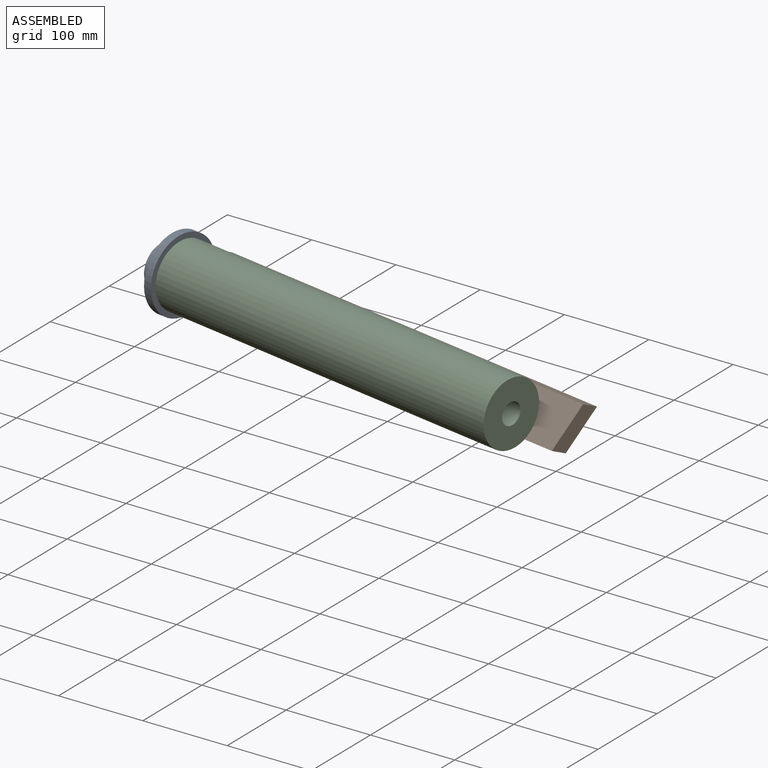
[diagram: assembled view]
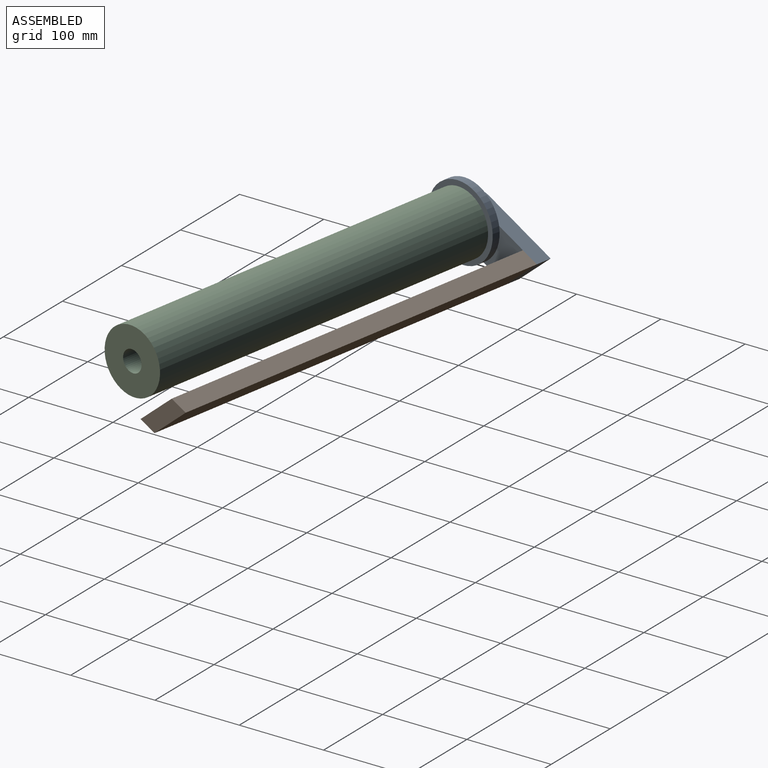
[diagram: assembled view, second angle]
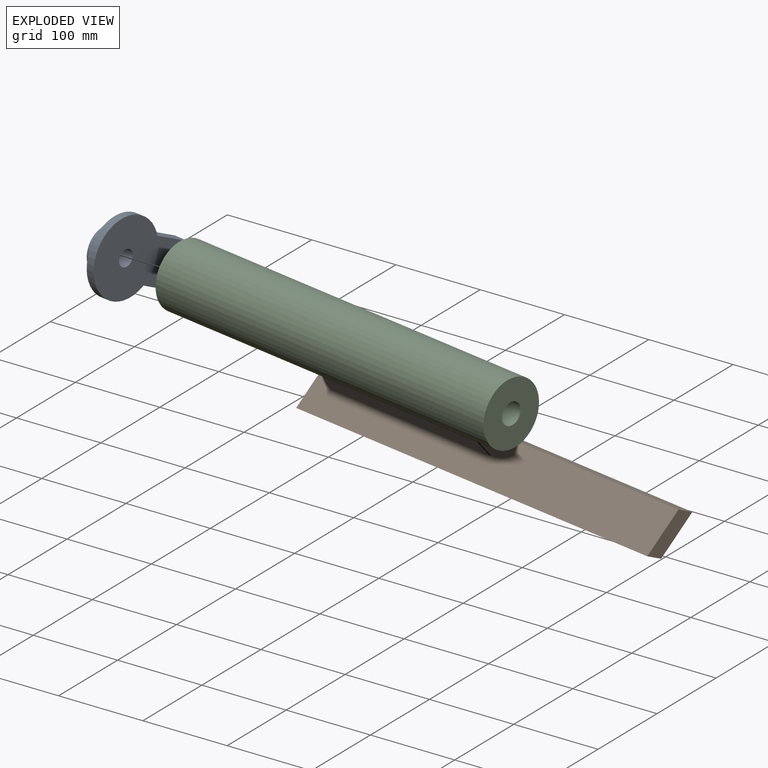
[diagram: exploded view]
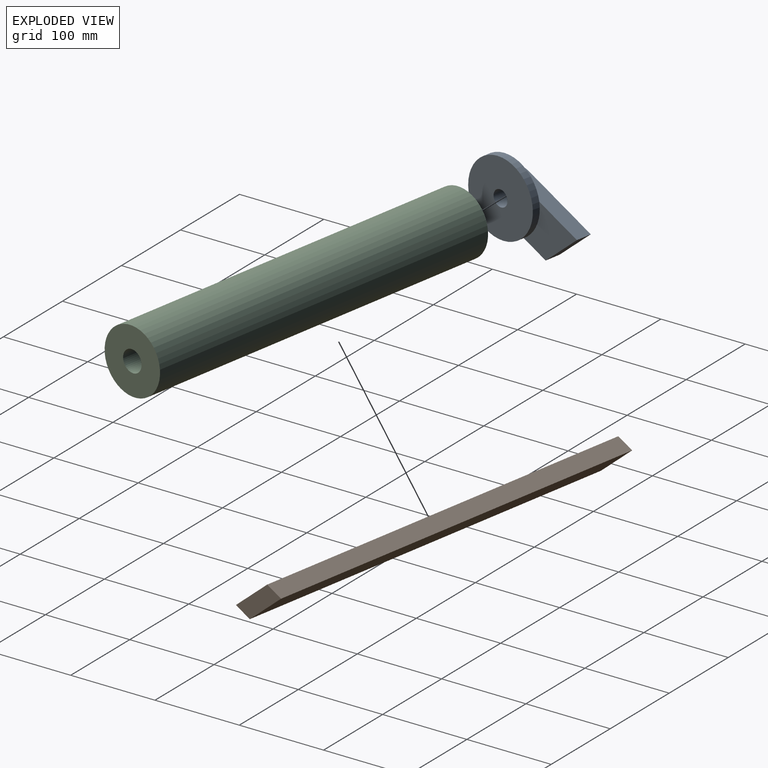
[diagram: exploded view, second angle]
ASSEMBLY  parts=3 mates=4
PART A: 11 faces, bbox 28.6x138x88.9 mm
  f0: cylinder r=25.4mm len=50.8mm, axis (-1,0,0), area 1520.1mm2, adj f1,f3,f5,f6
  f1: plane 69.85x19.05mm, normal (0,0,-1), area 1330.6mm2, adj f0,f2,f4,f5,f6
  f2: plane 50.8x23.69mm, normal (0,0.91,-0.42), area 1067.8mm2, adj f1,f3,f4,f5
  f3: plane 93.54x19.05mm, normal (0,0,1), area 1781.9mm2, adj f0,f2,f4,f5,f6
  f4: plane 57.06x50.8mm, normal (1,0,0), area 2021.8mm2, adj f1,f2,f3,f7
  f5: plane 118.94x50.8mm, normal (-1,0,0), area 5163.5mm2, adj f0,f1,f2,f3
  f6: plane 88.9x80.93mm, normal (-1,0,0), area 3065.4mm2, adj f0,f1,f3,f7
  f7: cylinder r=44.45mm len=88.9mm, axis (-1,0,0), area 2660.2mm2, adj f4,f6,f8
  f8: plane 88.9x88.9mm, normal (1,0,0), area 5922.1mm2, adj f7,f9
  f9: cylinder r=9.53mm len=19.05mm, axis (1,0,0), area 1140.1mm2, adj f8,f10
  f10: plane 19.05x19.05mm, normal (1,0,0), area 285mm2, adj f9
PART B: 6 faces, bbox 482.6x64.9x19.1 mm
  f0: plane 482.6x19.05mm, normal (0,-0.91,0.42), area 10143.9mm2, adj f1,f3,f4,f5
  f1: plane 482.6x56.05mm, normal (0,0,-1), area 27050.5mm2, adj f0,f2,f4,f5
  f2: plane 482.6x19.05mm, normal (0,0.91,-0.42), area 10143.9mm2, adj f1,f3,f4,f5
  f3: plane 482.6x56.05mm, normal (0,0,1), area 27050.5mm2, adj f0,f2,f4,f5
  f4: plane 64.93x19.05mm, normal (1,0,0), area 1067.8mm2, adj f0,f1,f2,f3
  f5: plane 64.93x19.05mm, normal (-1,0,0), area 1067.8mm2, adj f0,f1,f2,f3
PART C: 4 faces, bbox 450.9x76.2x76.2 mm
  f0: cylinder r=12.7mm len=450.85mm, axis (-1,0,0), area 35976.2mm2, adj f2,f3
  f1: cylinder r=38.1mm len=450.85mm, axis (-1,0,0), area 107928.7mm2, adj f2,f3
  f2: plane 76.2x76.2mm, normal (1,0,0), area 4053.7mm2, adj f0,f1
  f3: plane 76.2x76.2mm, normal (-1,0,0), area 4053.7mm2, adj f0,f1
PLACE A rot(axis=(-0.93,0.08,-0.37),26.9deg) t=(402.02,-64.57,534.96)mm
PLACE B rot(axis=(0.08,0.94,0.34),176.6deg) t=(651.11,-96.36,557.41)mm fixed
PLACE C rot(axis=(-0.93,0.08,-0.37),26.9deg) t=(633.65,-158.79,587.5)mm
MATE planar A.f2 <-> B.f3  axis (0.11,0.63,-0.77) through (405.75,-43.42,552.97)mm
MATE planar A.f4 <-> B.f4  axis (0.98,-0.17,0) through (412.26,-61.33,563.44)mm
MATE fastened A.f0 <-> C.f0  axis (0.98,-0.17,0) through (411.65,-119.65,587.5)mm
MATE planar A.f1 <-> B.f0  axis (-0.07,-0.42,-0.91) through (408.77,-81.11,542.01)mm
